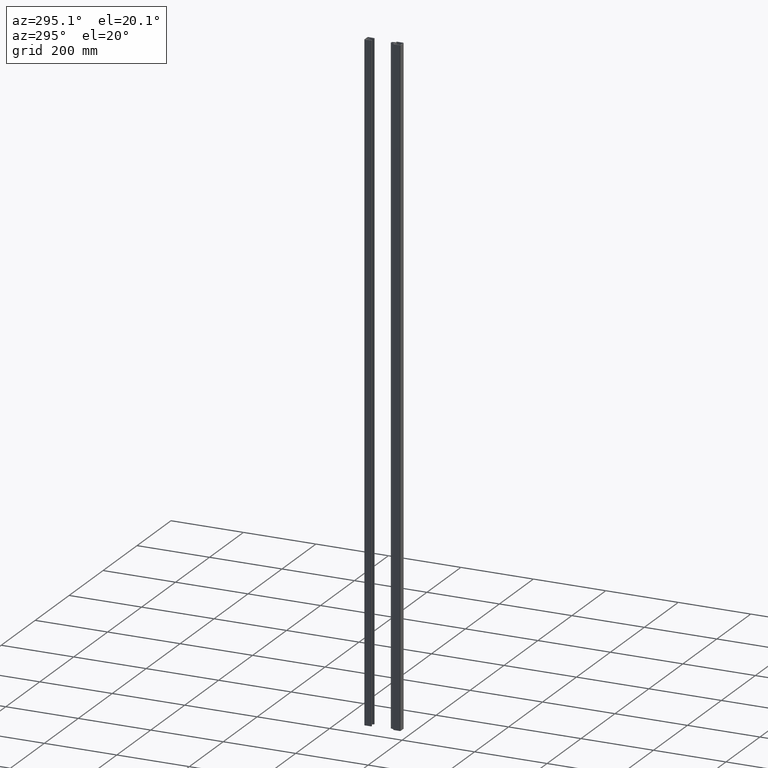
[diagram: clean part render]
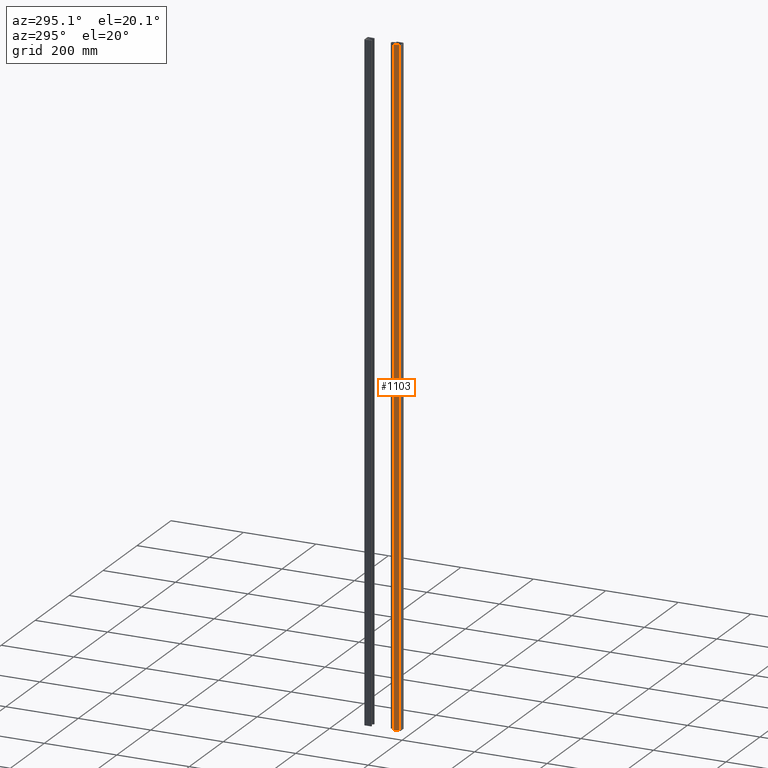
[diagram: same view with one face highlighted and labeled with its STEP entity id]
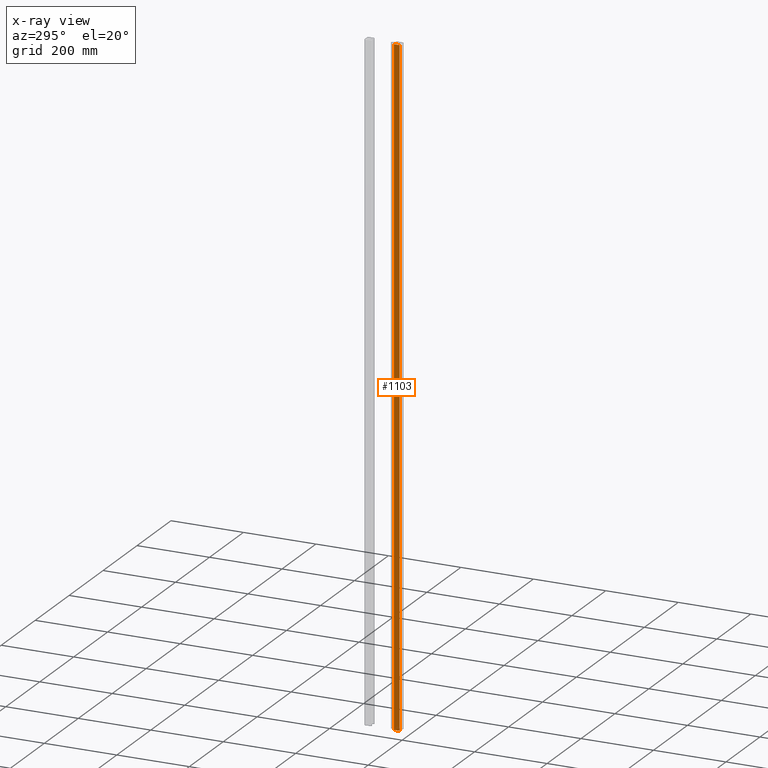
[diagram: x-ray of the same camera — body ghosted, the highlighted face saturated]
A machine part, auxiliary view. The second image highlights one B-rep face of the part: STEP entity #1103.
The next image is the same camera in x-ray: the body ghosted, the highlighted face saturated — about 0% of this face is hidden behind the body in this view.
In plain terms, the highlighted planar face has unit normal (-1, -0, 0).
Its self-contained STEP definition (entity closure, byte-faithful):
#180 = FACE_OUTER_BOUND ( 'NONE', #1426, .T. ) ;
#269 = ORIENTED_EDGE ( 'NONE', *, *, #1596, .T. ) ;
#327 = DIRECTION ( 'NONE',  ( 2.168404344971008621E-16, -1.000000000000000000, 0.000000000000000000 ) ) ;
#459 = VERTEX_POINT ( 'NONE', #706 ) ;
#467 = DIRECTION ( 'NONE',  ( 0.000000000000000000, 0.000000000000000000, 1.000000000000000000 ) ) ;
#543 = VERTEX_POINT ( 'NONE', #1939 ) ;
#565 = ORIENTED_EDGE ( 'NONE', *, *, #1005, .T. ) ;
#630 = VECTOR ( 'NONE', #467, 1000.000000000000000 ) ;
#706 = CARTESIAN_POINT ( 'NONE',  ( -10.30000000000000071, 2.000000000000000000, 0.000000000000000000 ) ) ;
#731 = DIRECTION ( 'NONE',  ( -1.000000000000000000, -2.168404344971008621E-16, 0.000000000000000000 ) ) ;
#786 = AXIS2_PLACEMENT_3D ( 'NONE', #960, #731, #327 ) ;
#823 = EDGE_CURVE ( 'NONE', #1618, #543, #1062, .T. ) ;
#834 = DIRECTION ( 'NONE',  ( 2.168404344971008375E-16, -1.000000000000000000, 0.000000000000000000 ) ) ;
#891 = CARTESIAN_POINT ( 'NONE',  ( -10.30000000000000071, 2.000000000000000000, -1825.000000000000000 ) ) ;
#946 = CARTESIAN_POINT ( 'NONE',  ( -10.30000000000000249, 18.00000000000000355, -1825.000000000000000 ) ) ;
#960 = CARTESIAN_POINT ( 'NONE',  ( -10.30000000000000249, 18.00000000000000355, -1825.000000000000000 ) ) ;
#1005 = EDGE_CURVE ( 'NONE', #1618, #2351, #2495, .T. ) ;
#1062 = LINE ( 'NONE', #2008, #630 ) ;
#1079 = VECTOR ( 'NONE', #834, 1000.000000000000000 ) ;
#1103 = ADVANCED_FACE ( 'NONE', ( #180 ), #1538, .T. ) ;
#1146 = DIRECTION ( 'NONE',  ( 0.000000000000000000, 0.000000000000000000, 1.000000000000000000 ) ) ;
#1426 = EDGE_LOOP ( 'NONE', ( #2307, #2349, #565, #269 ) ) ;
#1432 = EDGE_CURVE ( 'NONE', #543, #459, #1956, .T. ) ;
#1446 = VECTOR ( 'NONE', #1146, 1000.000000000000000 ) ;
#1508 = DIRECTION ( 'NONE',  ( 2.168404344971008375E-16, -1.000000000000000000, 0.000000000000000000 ) ) ;
#1538 = PLANE ( 'NONE',  #786 ) ;
#1596 = EDGE_CURVE ( 'NONE', #2351, #459, #2095, .T. ) ;
#1618 = VERTEX_POINT ( 'NONE', #1703 ) ;
#1703 = CARTESIAN_POINT ( 'NONE',  ( -10.30000000000000249, 18.00000000000000355, -1825.000000000000000 ) ) ;
#1883 = VECTOR ( 'NONE', #1508, 1000.000000000000000 ) ;
#1939 = CARTESIAN_POINT ( 'NONE',  ( -10.30000000000000249, 18.00000000000000355, 0.000000000000000000 ) ) ;
#1956 = LINE ( 'NONE', #2182, #1079 ) ;
#2008 = CARTESIAN_POINT ( 'NONE',  ( -10.30000000000000249, 18.00000000000000355, -1825.000000000000000 ) ) ;
#2066 = CARTESIAN_POINT ( 'NONE',  ( -10.30000000000000071, 2.000000000000000000, -1825.000000000000000 ) ) ;
#2095 = LINE ( 'NONE', #2066, #1446 ) ;
#2182 = CARTESIAN_POINT ( 'NONE',  ( -10.30000000000000249, 18.00000000000000355, 0.000000000000000000 ) ) ;
#2307 = ORIENTED_EDGE ( 'NONE', *, *, #1432, .F. ) ;
#2349 = ORIENTED_EDGE ( 'NONE', *, *, #823, .F. ) ;
#2351 = VERTEX_POINT ( 'NONE', #891 ) ;
#2495 = LINE ( 'NONE', #946, #1883 ) ;